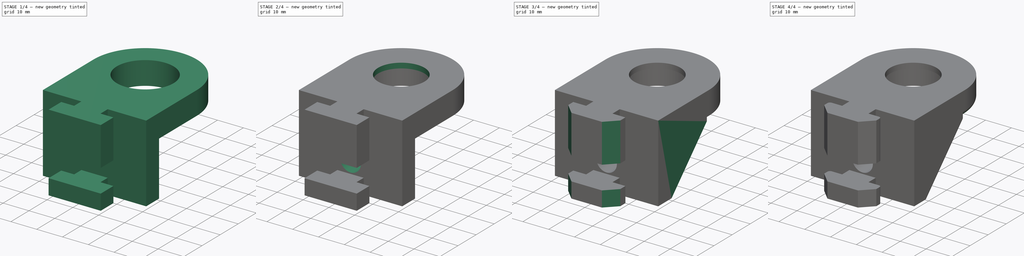
[diagram: build sequence overview — one tinted view per stage of 4, left to right]
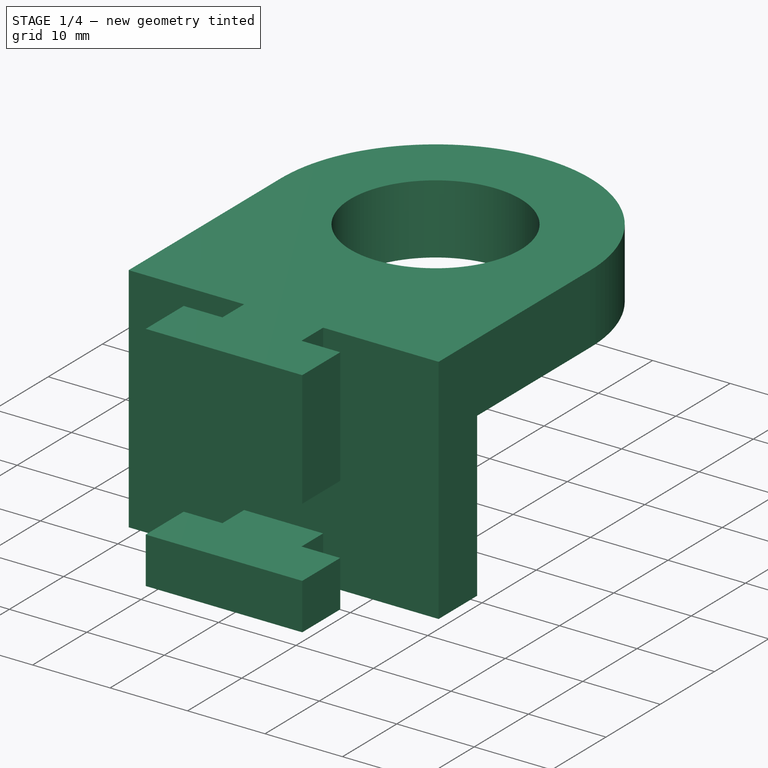
[diagram: stage 1 of 4 — iso view after this stage's code; geometry added in this stage tinted green]
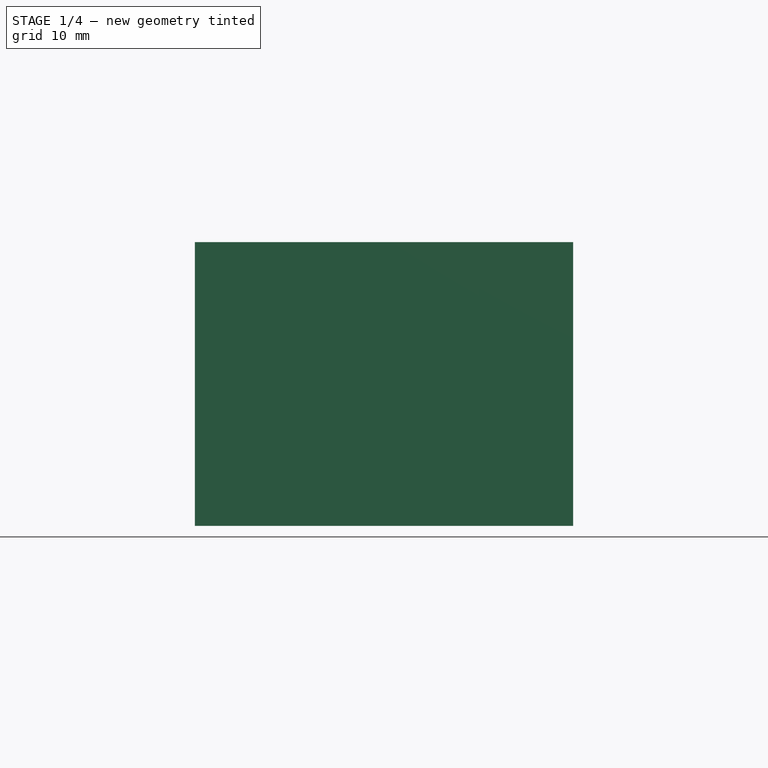
[diagram: stage 1 of 4 — front view after this stage's code; geometry added in this stage tinted green]
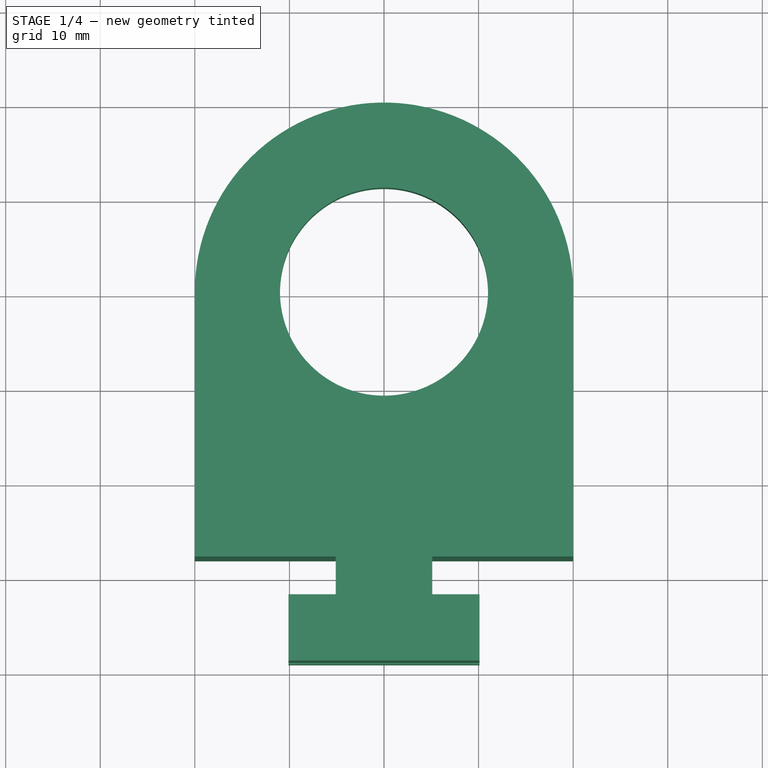
[diagram: stage 1 of 4 — top view after this stage's code; geometry added in this stage tinted green]
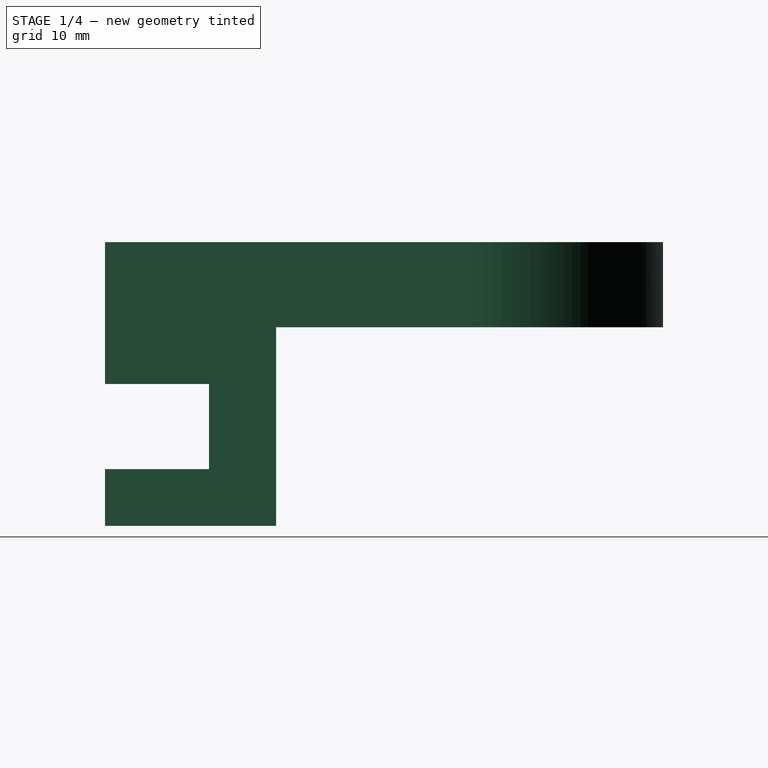
[diagram: stage 1 of 4 — right view after this stage's code; geometry added in this stage tinted green]
FCSTD DOCUMENT  (FreeCAD 1.0R39109 (Git))
Label: Задняя бабка2
License: All rights reserved
LicenseURL: https://en.wikipedia.org/wiki/All_rights_reserved
objects: Sketcher::SketchObject×7, PartDesign::Pad×4, PartDesign::Pocket×3, PartDesign::Fillet×3, PartDesign::Chamfer×2, PartDesign::Body×1
note: 51 computed .brp shape members not serialized (recipe doc carries the construction recipe); baked Part::Feature solids carry a one-line shape summary decoded from their .brp

FEATURE [Sketcher::SketchObject] Sketch
  ArcFitTolerance = 1e-06
  AttachmentSupport = -> [XY_Plane001]
  FullyConstrained = false
  MakeInternals = false
  MapMode = 5
  sketch-geometry (18):
    g0: LineSegment StartX=5.1 StartY=-2 StartZ=0 EndX=5.1 EndY=2 EndZ=0
    g1: LineSegment StartX=-5.1 StartY=2 StartZ=0 EndX=-5.1 EndY=-2 EndZ=0
    g2: GeomPoint [constr] X=0 Y=0 Z=0
    g3: Circle CenterX=0 CenterY=30 CenterZ=0 NormalX=0 NormalY=0 NormalZ=1 AngleXU=0 Radius=11
    g4: ArcOfCircle CenterX=0 CenterY=30 CenterZ=0 NormalX=0 NormalY=0 NormalZ=1 AngleXU=0 Radius=20 StartAngle=-6.00719e-11 EndAngle=3.1416
    g5: LineSegment StartX=-10.1 StartY=-9 StartZ=0 EndX=10.1 EndY=-9 EndZ=0
    g6: LineSegment StartX=10.1 StartY=-9 StartZ=0 EndX=10.1 EndY=-2 EndZ=0
    g7: LineSegment StartX=10.1 StartY=-2 StartZ=0 EndX=5.1 EndY=-2 EndZ=0
    g8: LineSegment StartX=-10.1 StartY=-2 StartZ=0 EndX=-10.1 EndY=-9 EndZ=0
    g9: GeomPoint [constr] X=0 Y=-5.5 Z=0
    g10: LineSegment StartX=-20 StartY=2 StartZ=0 EndX=-5.1 EndY=2 EndZ=0
    g11: LineSegment StartX=20 StartY=2 StartZ=0 EndX=20 EndY=9 EndZ=0
    g12: LineSegment StartX=-20 StartY=9 StartZ=0 EndX=-20 EndY=2 EndZ=0
    g13: GeomPoint [constr] X=0 Y=5.5 Z=0
    g14: LineSegment StartX=20 StartY=9 StartZ=0 EndX=20 EndY=30 EndZ=0
    g15: LineSegment StartX=-20 StartY=29.9999 StartZ=0 EndX=-20 EndY=9 EndZ=0
    g16: LineSegment StartX=-5.1 StartY=-2 StartZ=0 EndX=-10.1 EndY=-2 EndZ=0
    g17: LineSegment StartX=5.1 StartY=2 StartZ=0 EndX=20 EndY=2 EndZ=0
  constraints (43):
    c: Vertical(g0)
    c: Vertical(g1)
    c: Symmetric(g0,g1,g2)
    c: Distance(g0,g1) = 10.2
    c: Distance(g1,g1) = 4
    c: Coincident(g2,g-1)
    c: Diameter(g3) = 22
    c: PointOnObject(g3,g-2)
    c: DistanceY(g3) = 30
    c: Diameter(g4) = 40
    c: Coincident(g4,g3)
    c: Coincident(g5,g6)
    c: Coincident(g6,g7)
    c: Coincident(g16,g8)
    c: Coincident(g8,g5)
    c: Horizontal(g5)
    c: Horizontal(g7)
    c: Vertical(g6)
    c: Vertical(g8)
    c: Symmetric(g7,g5,g9)
    c: Distance(g6,g8) = 20.2
    c: Distance(g5,g16) = 7
    c: PointOnObject(g9,g-2)
    c: DistanceY(g9) = -5.5
    c: Coincident(g17,g11)
    c: Coincident(g12,g10)
    c: Horizontal(g10)
    c: Vertical(g11)
    c: Vertical(g12)
    c: Symmetric(g11,g10,g13)
    c: Distance(g11,g12) = 40
    c: Distance(g10,g12) = 7
    c: PointOnObject(g13,g-2)
    c: DistanceY(g13) = 5.5
    c: Vertical(g14)
    c: Vertical(g15)
    c: Distance(g14,g15) = 40
    c: PointOnObject(g7,g0)
    c: PointOnObject(g16,g1)
    c: PointOnObject(g10,g1)
    c: PointOnObject(g17,g0)
    c: Coincident(g4,g15)
    c: Coincident(g4,g14)
FEATURE [PartDesign::Pad] Pad
  Direction = (0,0,1)
  Length = 30
  Length2 = 10
  Profile = -> Sketch
  ReferenceAxis = -> Sketch [N_Axis]
  Refine = true
  Suppressed = false
  Type = 0
FEATURE [Sketcher::SketchObject] Sketch001
  ArcFitTolerance = 1e-06
  AttachmentSupport = -> [Pad]
  FullyConstrained = true
  MakeInternals = false
  MapMode = 5
  Placement = pos=(-10.1,0,0) rot=(0.57735,-0.57735,-0.57735;2.0944rad)
  sketch-geometry (4):
    g0: LineSegment StartX=-2 StartY=6 StartZ=0 EndX=9 EndY=6 EndZ=0
    g1: LineSegment StartX=9 StartY=6 StartZ=0 EndX=9 EndY=15 EndZ=0
    g2: LineSegment StartX=9 StartY=15 StartZ=0 EndX=-2 EndY=15 EndZ=0
    g3: LineSegment StartX=-2 StartY=15 StartZ=0 EndX=-2 EndY=6 EndZ=0
  constraints (12):
    c: Coincident(g0,g1)
    c: Coincident(g1,g2)
    c: Coincident(g2,g3)
    c: Coincident(g3,g0)
    c: Horizontal(g0)
    c: Horizontal(g2)
    c: Vertical(g1)
    c: Vertical(g3)
    c: Distance(g1,g3) = 11
    c: Distance(g0,g2) = 9
    c: DistanceX(g0) = -2
    c: DistanceY(g0) = 6
FEATURE [PartDesign::Pocket] Pocket
  BaseFeature = -> Pad
  Direction = (1,0,0)
  Length = 30
  Length2 = 5
  Profile = -> Sketch001
  ReferenceAxis = -> Sketch001 [N_Axis]
  Refine = true
  Suppressed = false
  Type = 0
FEATURE [Sketcher::SketchObject] Sketch002
  ArcFitTolerance = 1e-06
  AttachmentSupport = -> [Pocket]
  FullyConstrained = false
  MakeInternals = false
  MapMode = 5
  Placement = pos=(-20,5.54986e-11,0) rot=(-0.57735,0.57735,0.57735;4.18879rad)
  sketch-geometry (4):
    g0: LineSegment StartX=-9.09031 StartY=0 StartZ=0 EndX=-9.09031 EndY=21 EndZ=0
    g1: LineSegment StartX=-9.09031 StartY=21 StartZ=0 EndX=-59.0903 EndY=21 EndZ=0
    g2: LineSegment StartX=-59.0903 StartY=21 StartZ=0 EndX=-59.0903 EndY=0 EndZ=0
    g3: LineSegment StartX=-59.0903 StartY=0 StartZ=0 EndX=-9.09031 EndY=0 EndZ=0
  constraints (11):
    c: Coincident(g0,g1)
    c: Coincident(g1,g2)
    c: Coincident(g2,g3)
    c: Coincident(g3,g0)
    c: Vertical(g0)
    c: Vertical(g2)
    c: Horizontal(g1)
    c: Horizontal(g3)
    c: Distance(g0,g2) = 50
    c: Distance(g1,g3) = 21
    c: PointOnObject(g0,g-1)
FEATURE [PartDesign::Pocket] Pocket001
  BaseFeature = -> Pocket
  Direction = (1,-2.7748e-12,-1e-16)
  Length = 50
  Length2 = 5
  Profile = -> Sketch002
  ReferenceAxis = -> Sketch002 [N_Axis]
  Refine = true
  Suppressed = false
  Type = 0
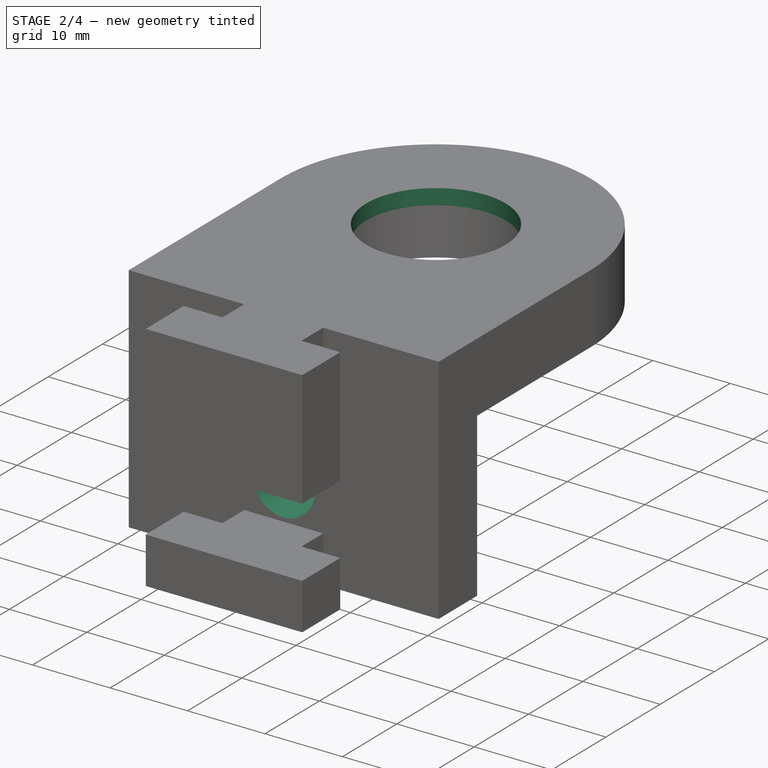
[diagram: stage 2 of 4 — iso view after this stage's code; geometry added in this stage tinted green]
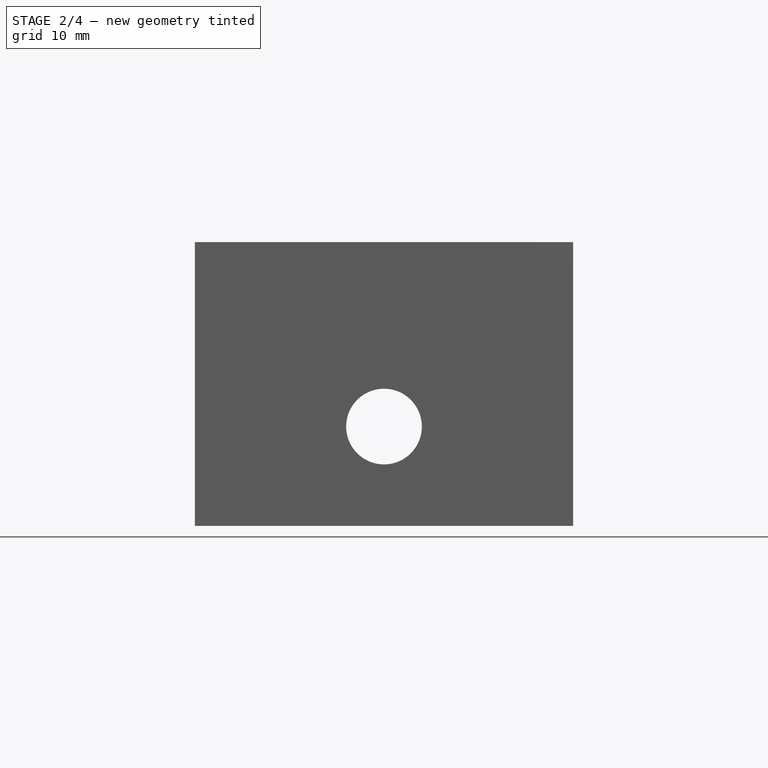
[diagram: stage 2 of 4 — front view after this stage's code; geometry added in this stage tinted green]
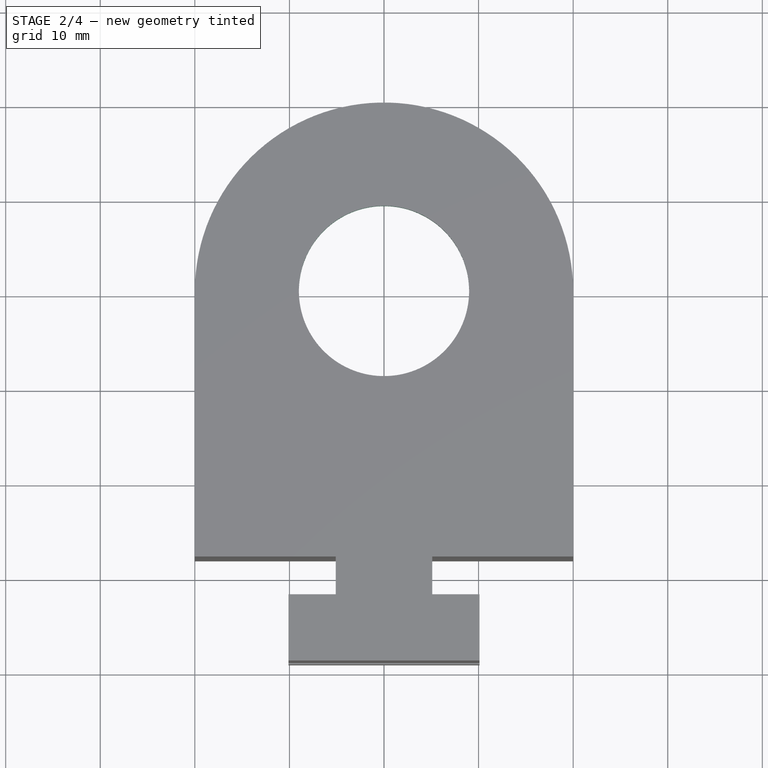
[diagram: stage 2 of 4 — top view after this stage's code; geometry added in this stage tinted green]
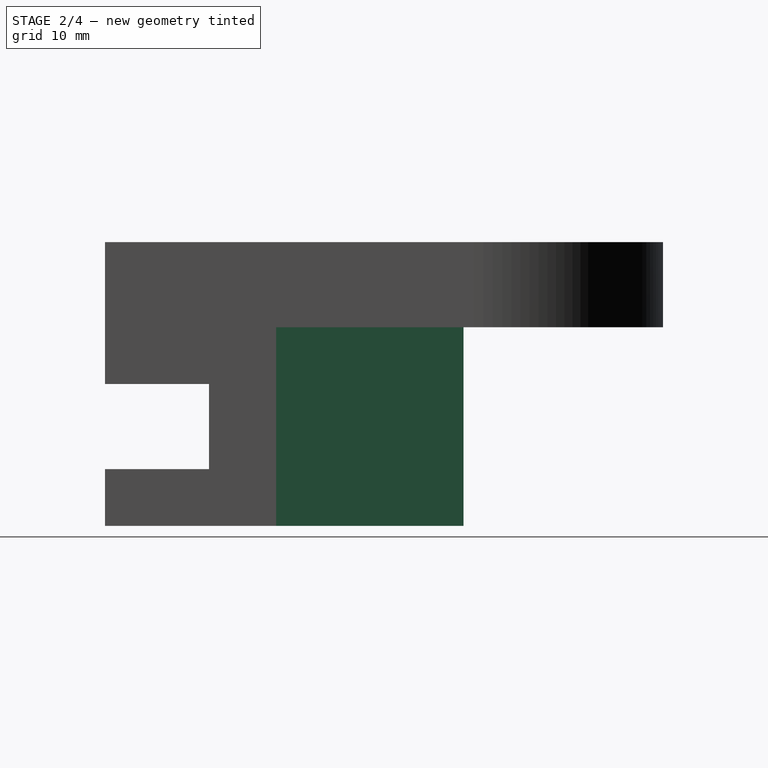
[diagram: stage 2 of 4 — right view after this stage's code; geometry added in this stage tinted green]
FEATURE [Sketcher::SketchObject] Sketch003
  ArcFitTolerance = 1e-06
  AttachmentSupport = -> [Pocket001]
  FullyConstrained = false
  MakeInternals = false
  MapMode = 5
  Placement = pos=(0,0,30) rot=(0,0,1;0rad)
  sketch-geometry (2):
    g0: Circle CenterX=0 CenterY=30.0722 CenterZ=0 NormalX=0 NormalY=0 NormalZ=1 AngleXU=0 Radius=9
    g1: Circle CenterX=0 CenterY=30.0722 CenterZ=0 NormalX=0 NormalY=0 NormalZ=1 AngleXU=0 Radius=13.6085
  constraints (3):
    c: Diameter(g0) = 18
    c: PointOnObject(g0,g-2)
    c: Coincident(g1,g0)
FEATURE [PartDesign::Pad] Pad001
  BaseFeature = -> Pocket001
  Direction = (0,0,1)
  Length = 2
  Length2 = 10
  Profile = -> Sketch003
  ReferenceAxis = -> Sketch003 [N_Axis]
  Refine = true
  Reversed = true
  Suppressed = false
  Type = 0
FEATURE [Sketcher::SketchObject] Sketch004
  ArcFitTolerance = 1e-06
  AttachmentSupport = -> [Pad001]
  FullyConstrained = true
  MakeInternals = false
  MapMode = 5
  Placement = pos=(0,2,0) rot=(1,0,0;1.5708rad)
  sketch-geometry (1):
    g0: Circle CenterX=0 CenterY=10.5 CenterZ=0 NormalX=0 NormalY=0 NormalZ=1 AngleXU=0 Radius=4
  constraints (3):
    c: Diameter(g0) = 8
    c: PointOnObject(g0,g-2)
    c: DistanceY(g0) = 10.5
FEATURE [PartDesign::Pocket] Pocket002
  BaseFeature = -> Pad001
  Direction = (0,1,-2e-16)
  Length = 10
  Length2 = 5
  Profile = -> Sketch004
  ReferenceAxis = -> Sketch004 [N_Axis]
  Refine = true
  Suppressed = false
  Type = 0
FEATURE [Sketcher::SketchObject] Sketch005
  ArcFitTolerance = 1e-06
  AttachmentSupport = -> [Pocket002]
  FullyConstrained = true
  MakeInternals = false
  MapMode = 5
  Placement = pos=(2.3e-15,-2.3e-15,21) rot=(1,0,0;3.14159rad)
  sketch-geometry (4):
    g0: LineSegment StartX=-20 StartY=-8.9 StartZ=0 EndX=-20 EndY=-28.9 EndZ=0
    g1: LineSegment StartX=-20 StartY=-28.9 StartZ=0 EndX=-11.5 EndY=-28.9 EndZ=0
    g2: LineSegment StartX=-11.5 StartY=-28.9 StartZ=0 EndX=-11.5 EndY=-8.9 EndZ=0
    g3: LineSegment StartX=-11.5 StartY=-8.9 StartZ=0 EndX=-20 EndY=-8.9 EndZ=0
  constraints (12):
    c: Coincident(g0,g1)
    c: Coincident(g1,g2)
    c: Coincident(g2,g3)
    c: Coincident(g3,g0)
    c: Vertical(g0)
    c: Vertical(g2)
    c: Horizontal(g1)
    c: Horizontal(g3)
    c: Distance(g0,g2) = 8.5
    c: Distance(g1,g3) = 20
    c: DistanceX(g0) = -20
    c: DistanceY(g0) = -8.9
FEATURE [PartDesign::Pad] Pad002
  BaseFeature = -> Pocket002
  Direction = (0,0,-1)
  Length = 21
  Length2 = 10
  Profile = -> Sketch005
  ReferenceAxis = -> Sketch005 [N_Axis]
  Refine = true
  Suppressed = false
  Type = 0
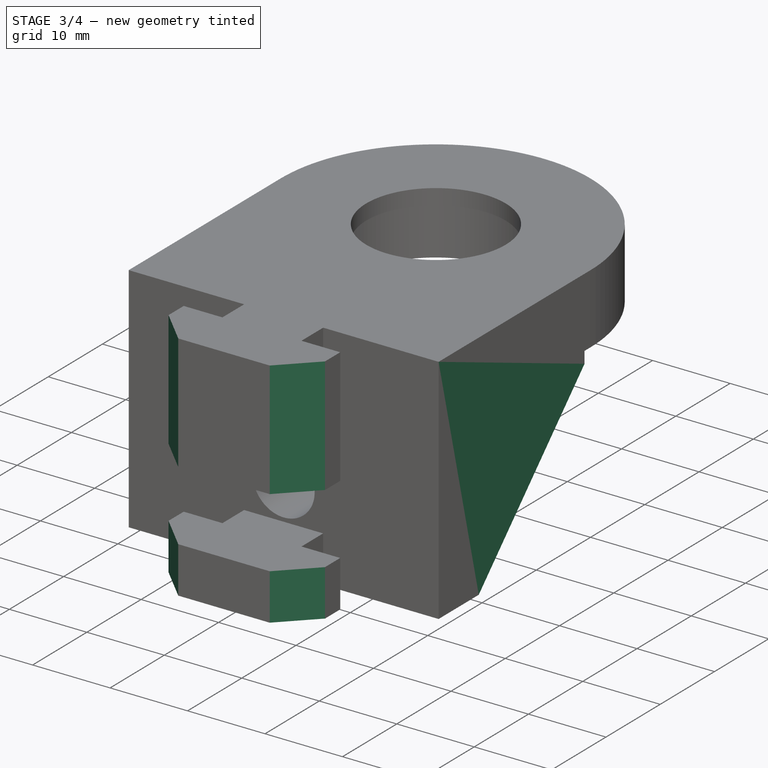
[diagram: stage 3 of 4 — iso view after this stage's code; geometry added in this stage tinted green]
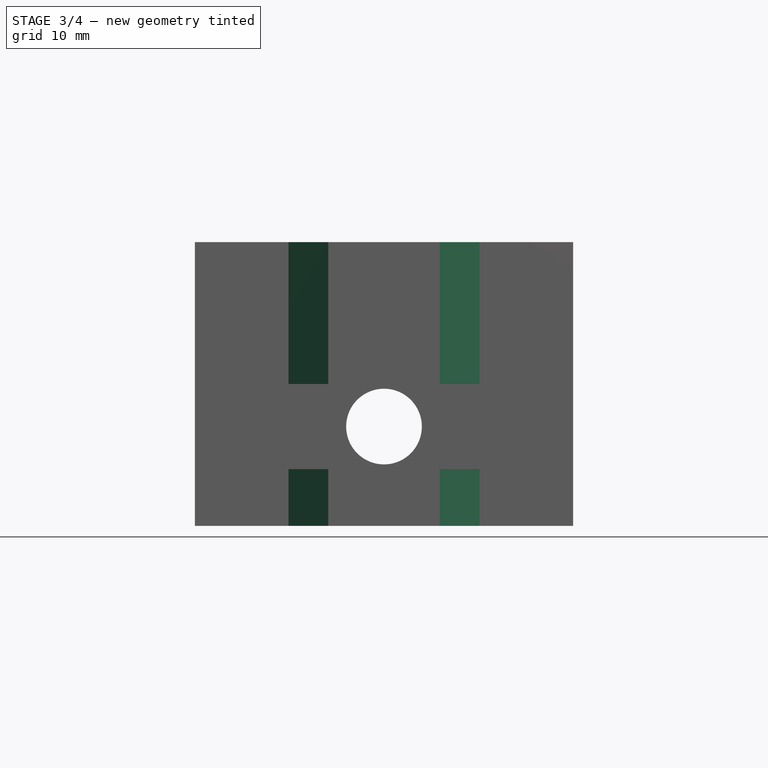
[diagram: stage 3 of 4 — front view after this stage's code; geometry added in this stage tinted green]
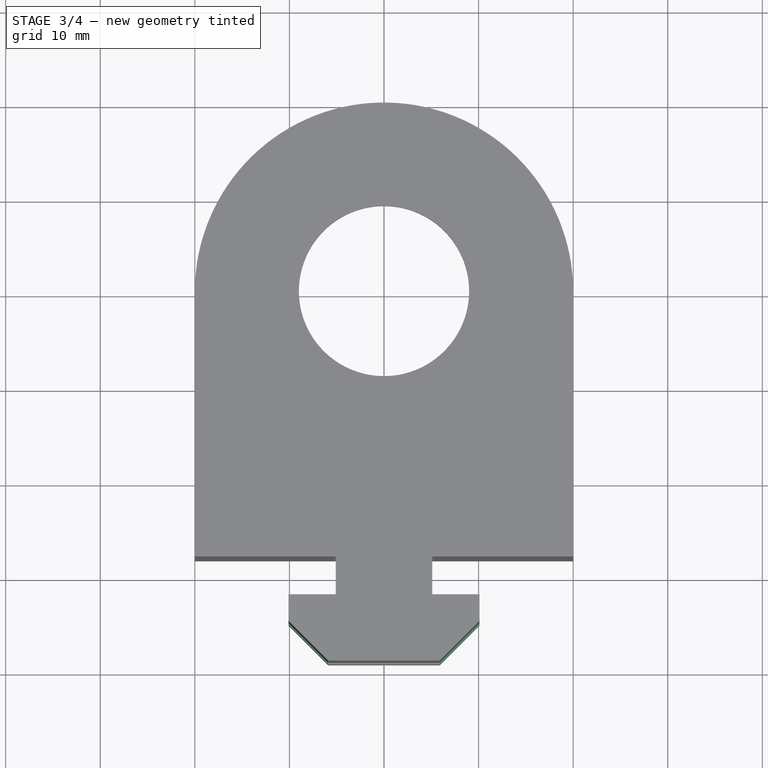
[diagram: stage 3 of 4 — top view after this stage's code; geometry added in this stage tinted green]
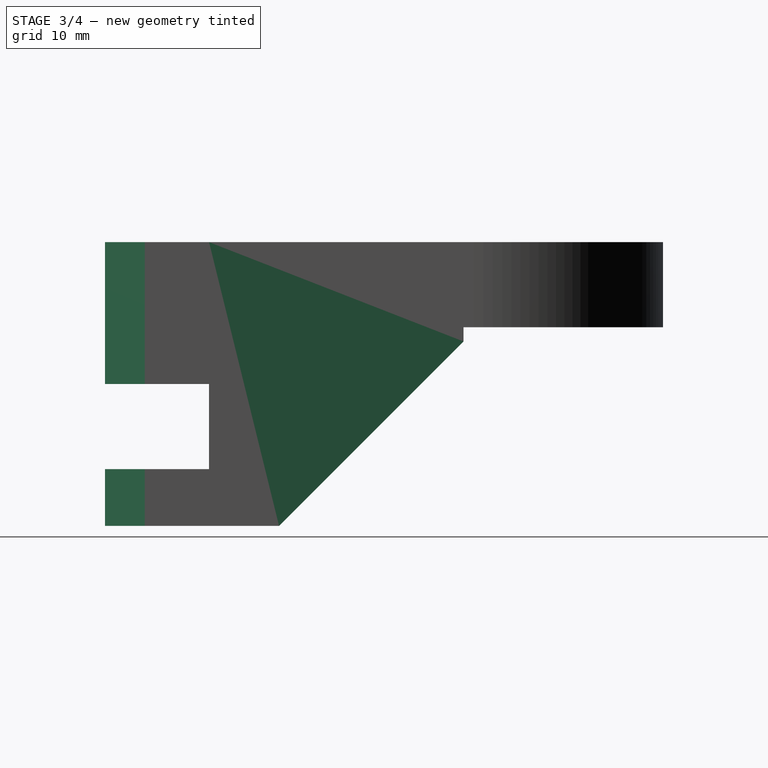
[diagram: stage 3 of 4 — right view after this stage's code; geometry added in this stage tinted green]
FEATURE [Sketcher::SketchObject] Sketch006
  ArcFitTolerance = 1e-06
  AttachmentSupport = -> [Pad002]
  FullyConstrained = true
  MakeInternals = false
  MapMode = 5
  Placement = pos=(2.3e-15,-2.3e-15,21) rot=(1,0,0;3.14159rad)
  sketch-geometry (4):
    g0: LineSegment StartX=20 StartY=-8.9 StartZ=0 EndX=11.5 EndY=-8.9 EndZ=0
    g1: LineSegment StartX=11.5 StartY=-8.9 StartZ=0 EndX=11.5 EndY=-28.9 EndZ=0
    g2: LineSegment StartX=11.5 StartY=-28.9 StartZ=0 EndX=20 EndY=-28.9 EndZ=0
    g3: LineSegment StartX=20 StartY=-28.9 StartZ=0 EndX=20 EndY=-8.9 EndZ=0
  constraints (12):
    c: Coincident(g0,g1)
    c: Coincident(g1,g2)
    c: Coincident(g2,g3)
    c: Coincident(g3,g0)
    c: Horizontal(g0)
    c: Horizontal(g2)
    c: Vertical(g1)
    c: Vertical(g3)
    c: Distance(g1,g3) = 8.5
    c: Distance(g0,g2) = 20
    c: DistanceX(g0) = 11.5
    c: DistanceY(g0) = -8.9
FEATURE [PartDesign::Pad] Pad003
  BaseFeature = -> Pad002
  Direction = (0,0,-1)
  Length = 21
  Length2 = 10
  Profile = -> Sketch006
  ReferenceAxis = -> Sketch006 [N_Axis]
  Refine = true
  Suppressed = false
  Type = 0
FEATURE [PartDesign::Chamfer] Chamfer
  Angle = 45
  Base = -> Pad003 [Edge84,Edge11]
  BaseFeature = -> Pad003
  ChamferType = 0
  FlipDirection = false
  Refine = true
  Size = 19.5
  Size2 = 1
  SupportTransform = false
  Suppressed = false
  UseAllEdges = false
FEATURE [PartDesign::Chamfer] Chamfer001
  Angle = 45
  Base = -> Chamfer [Edge57,Edge91,Edge90,Edge53]
  BaseFeature = -> Chamfer
  ChamferType = 0
  FlipDirection = false
  Refine = true
  Size = 4.2
  Size2 = 1
  SupportTransform = false
  Suppressed = false
  UseAllEdges = false
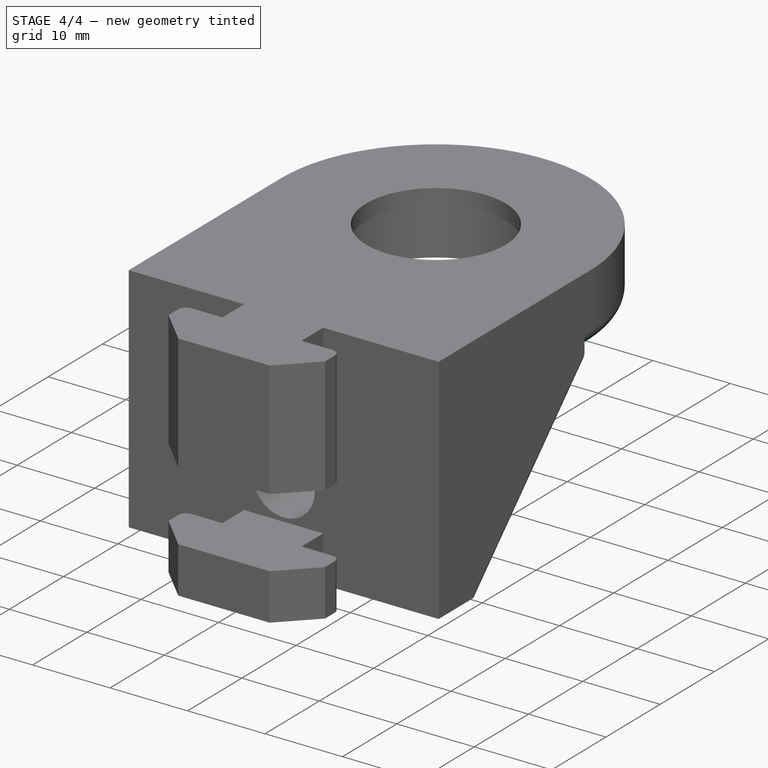
[diagram: stage 4 of 4 — iso view after this stage's code; geometry added in this stage tinted green]
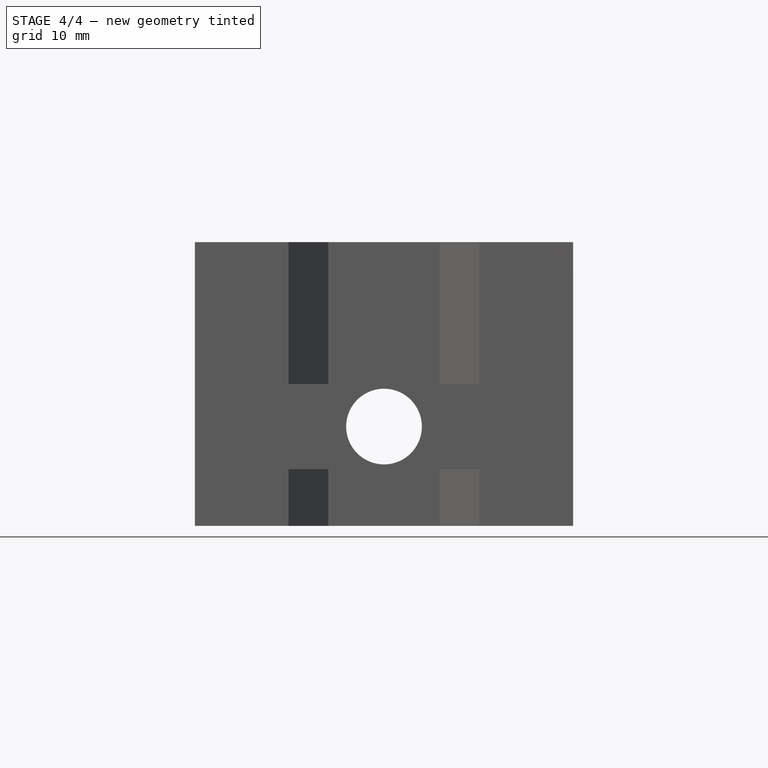
[diagram: stage 4 of 4 — front view after this stage's code; geometry added in this stage tinted green]
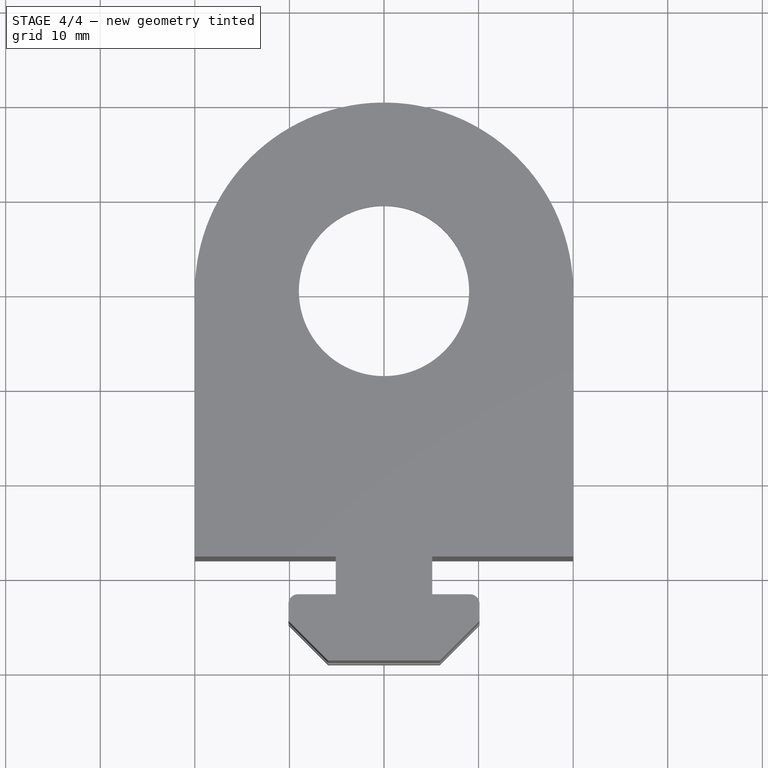
[diagram: stage 4 of 4 — top view after this stage's code; geometry added in this stage tinted green]
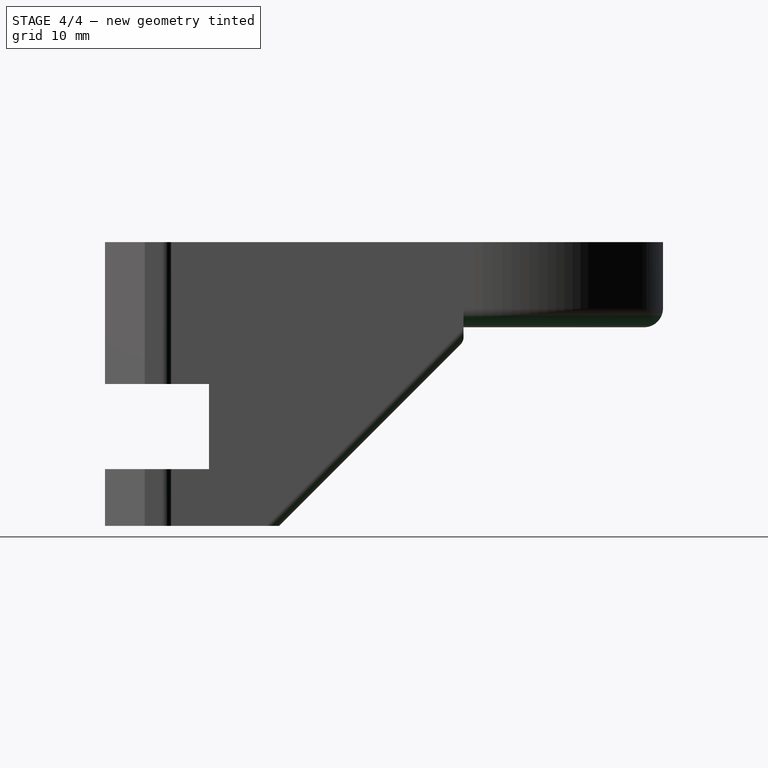
[diagram: stage 4 of 4 — right view after this stage's code; geometry added in this stage tinted green]
FEATURE [PartDesign::Fillet] Fillet
  Base = -> Chamfer001 [Edge101,Edge42,Edge97,Edge20]
  BaseFeature = -> Chamfer001
  Radius = 1
  Refine = true
  SupportTransform = false
  Suppressed = false
  UseAllEdges = false
FEATURE [PartDesign::Fillet] Fillet001
  Base = -> Fillet [Edge103]
  BaseFeature = -> Fillet
  Radius = 2
  Refine = true
  SupportTransform = false
  Suppressed = false
  UseAllEdges = false
FEATURE [PartDesign::Fillet] Fillet002
  Base = -> Fillet001 [Edge66,Edge122,Edge60,Edge8,Edge32,Edge123]
  BaseFeature = -> Fillet001
  Radius = 1
  Refine = true
  SupportTransform = false
  Suppressed = false
  UseAllEdges = false
FEATURE [PartDesign::Body] Body001  label="Тело001"
  AllowCompound = false
  Group = -> [Sketch,Pad,Sketch001,Pocket,Sketch002,Pocket001,Sketch003,Pad001,Sketch004,Pocket002,Sketch005,Pad002,Sketch006,Pad003,Chamfer,Chamfer001,Fillet,Fillet001,Fillet002]
  Origin = -> Origin001
  Tip = -> Fillet002
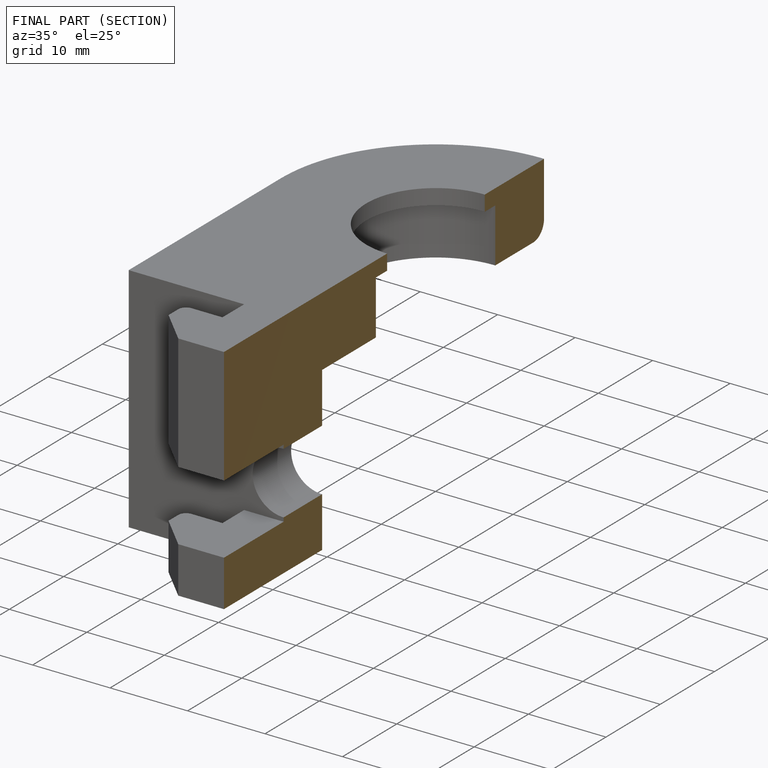
[diagram: finished part — half-section view (interior)]
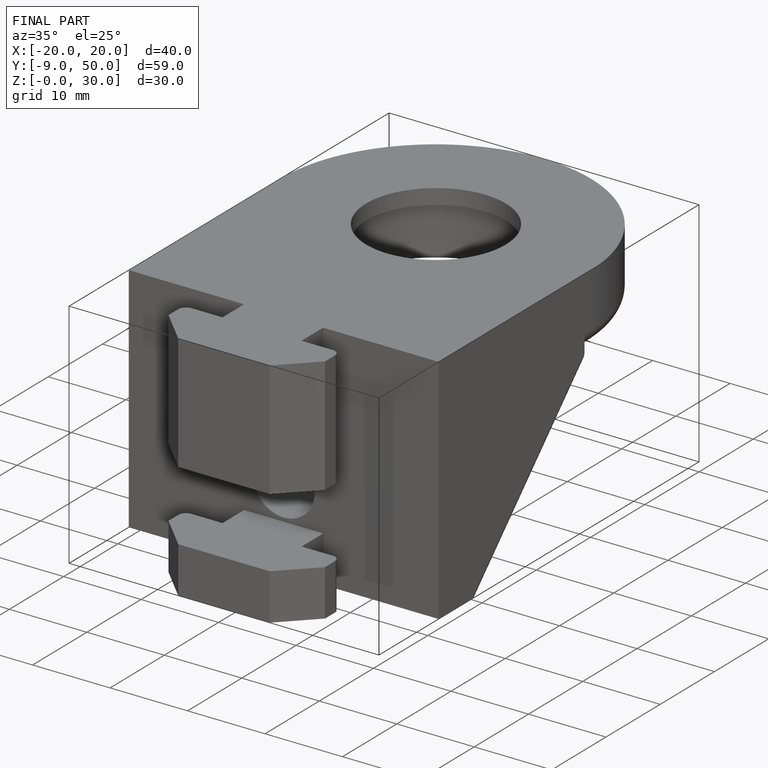
[diagram: finished part — iso view with bounding-box wireframe]
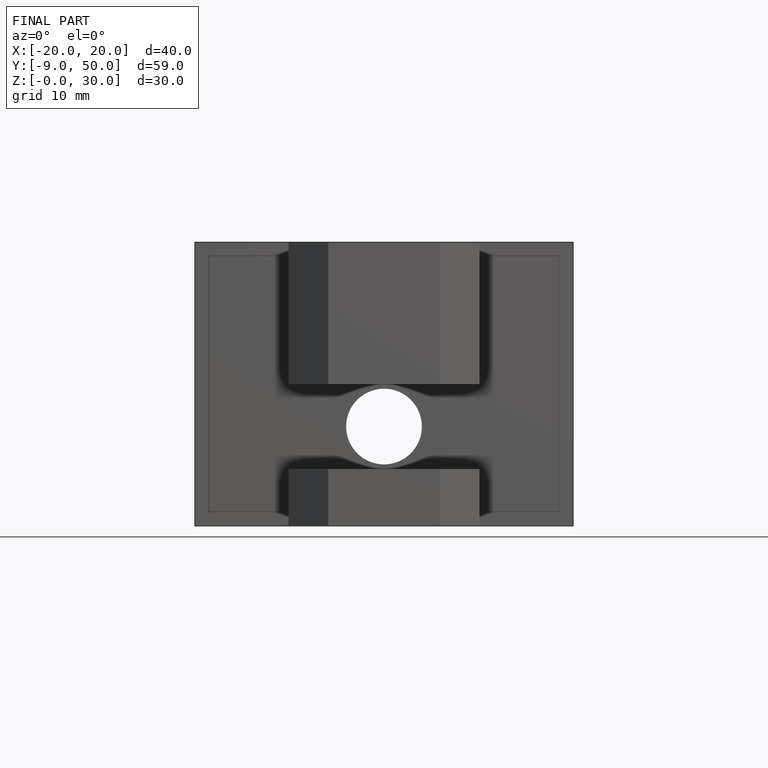
[diagram: finished part — front view with bounding-box wireframe]
